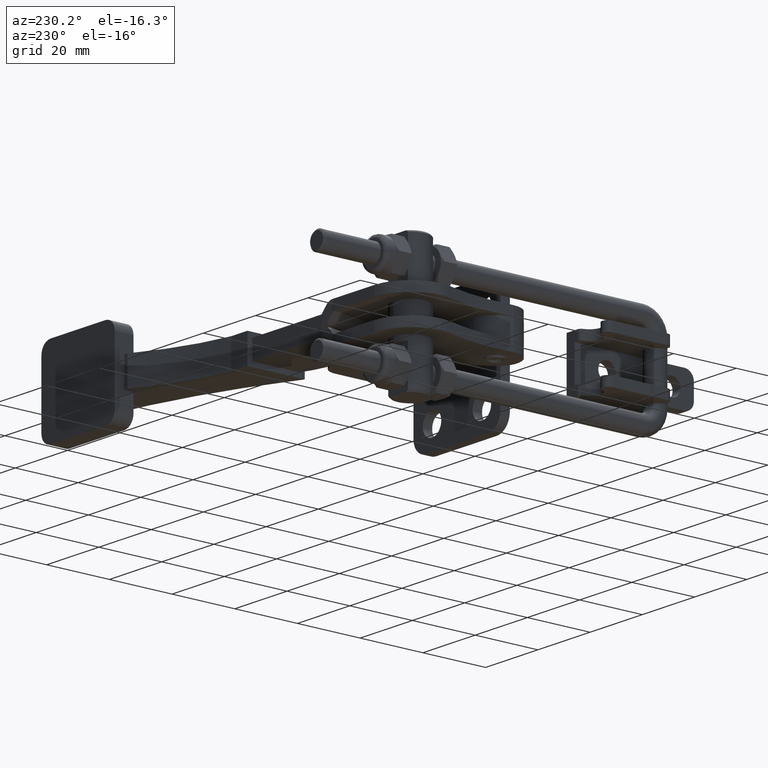
[diagram: clean part render]
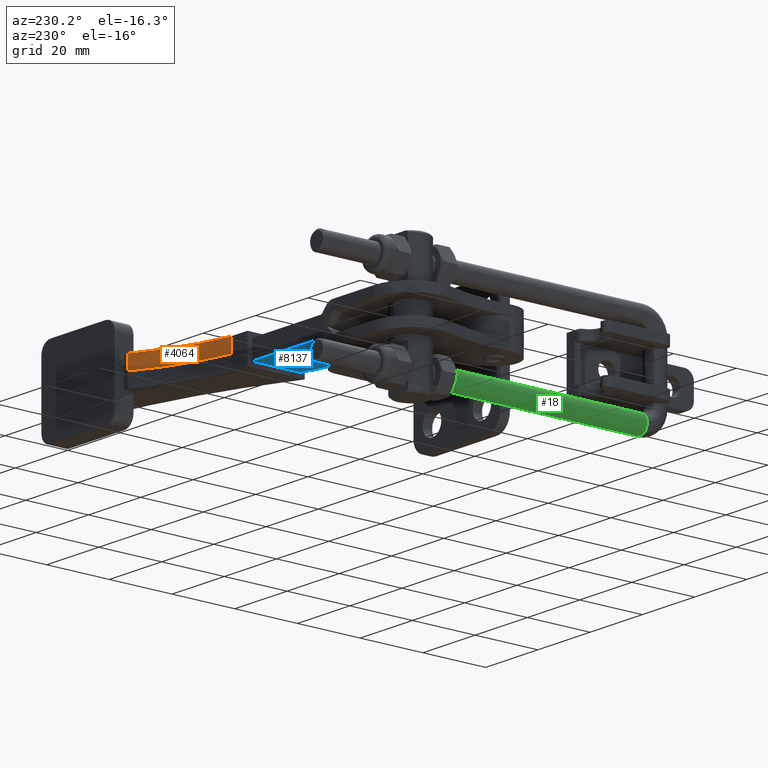
[diagram: same view with three faces highlighted in distinct colors, each labeled with its STEP entity id]
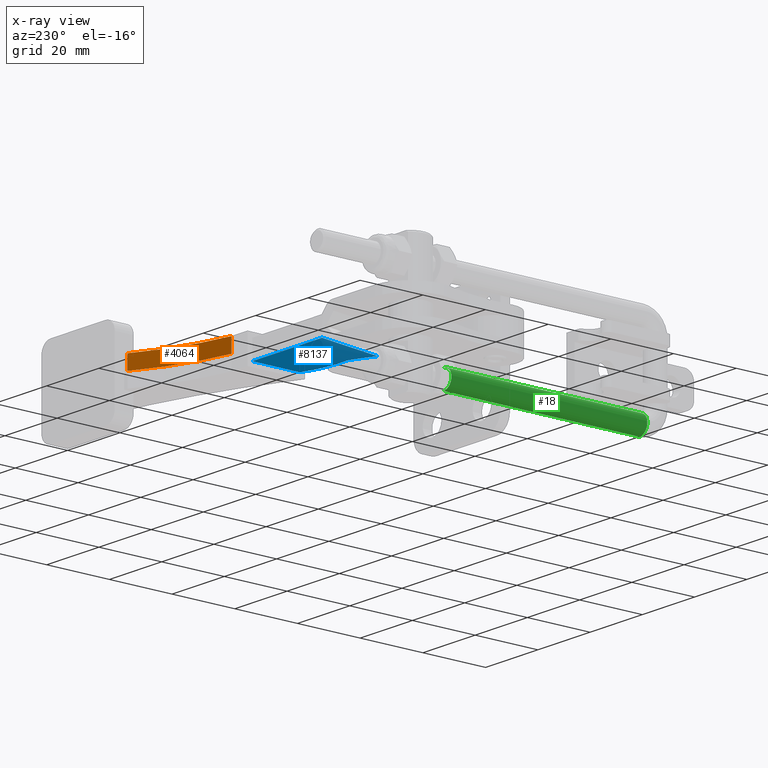
[diagram: x-ray of the same camera — body ghosted, the three highlighted faces saturated]
A machine part, auxiliary view with three faces highlighted in distinct colors.
The next image is the same camera in x-ray (body ghosted, the three faces saturated) — at least one of them is partly hidden behind the body in this view.
Their STEP definitions:

[orange] entity #4064 — the highlighted cylindrical surface (partial cylindrical patch) has radius 74.5 mm, axis along (-0, -0, 1).
#300 = VERTEX_POINT ( 'NONE', #8467 ) ;
#925 = EDGE_CURVE ( 'NONE', #2612, #300, #8361, .T. ) ;
#1310 = ORIENTED_EDGE ( 'NONE', *, *, #4200, .F. ) ;
#1406 = ORIENTED_EDGE ( 'NONE', *, *, #9375, .T. ) ;
#1446 = VERTEX_POINT ( 'NONE', #6721 ) ;
#1561 = ORIENTED_EDGE ( 'NONE', *, *, #5558, .F. ) ;
#1725 = CARTESIAN_POINT ( 'NONE',  ( 0.05683262129303062700, 125.7815870721781600, 0.0006030670134014003100 ) ) ;
#2522 = DIRECTION ( 'NONE',  ( 0.9999982834972985800, 0.001852836327522323800, 3.921506730467770700E-017 ) ) ;
#2612 = VERTEX_POINT ( 'NONE', #2949 ) ;
#2703 = AXIS2_PLACEMENT_3D ( 'NONE', #5304, #10275, #4464 ) ;
#2760 = LINE ( 'NONE', #5652, #6428 ) ;
#2926 = CIRCLE ( 'NONE', #2703, 74.49999999999998600 ) ;
#2949 = CARTESIAN_POINT ( 'NONE',  ( 10.81696560941712600, 52.06273237354707100, 0.0006030670133966298300 ) ) ;
#4052 = AXIS2_PLACEMENT_3D ( 'NONE', #1725, #7572, #2522 ) ;
#4064 = ADVANCED_FACE ( 'NONE', ( #8794 ), #5311, .F. ) ;
#4200 = EDGE_CURVE ( 'NONE', #1446, #300, #2926, .T. ) ;
#4242 = CARTESIAN_POINT ( 'NONE',  ( 0.05683262129303062700, 125.7815870721781600, 0.0006030670134014003100 ) ) ;
#4464 = DIRECTION ( 'NONE',  ( 0.9999982834972985800, 0.001852836327522323800, 3.492731830825787100E-017 ) ) ;
#4766 = ORIENTED_EDGE ( 'NONE', *, *, #925, .T. ) ;
#5069 = DIRECTION ( 'NONE',  ( 0.9999982834972985800, 0.001852836327522323800, 3.921506730467770700E-017 ) ) ;
#5304 = CARTESIAN_POINT ( 'NONE',  ( 0.05683262129303062700, 125.7815870721781600, 4.500603067013401000 ) ) ;
#5311 = CYLINDRICAL_SURFACE ( 'NONE', #4052, 74.49999999999998600 ) ;
#5558 = EDGE_CURVE ( 'NONE', #7573, #1446, #2760, .T. ) ;
#5652 = CARTESIAN_POINT ( 'NONE',  ( 38.61519981494309700, 62.03598079723830900, 0.0006030670134027013600 ) ) ;
#6142 = CIRCLE ( 'NONE', #7017, 74.49999999999998600 ) ;
#6428 = VECTOR ( 'NONE', #9784, 1000.000000000000000 ) ;
#6721 = CARTESIAN_POINT ( 'NONE',  ( 38.61519981494309700, 62.03598079723830900, 4.500603067013402700 ) ) ;
#6738 = CARTESIAN_POINT ( 'NONE',  ( 10.81696560941713900, 52.06273237354706400, 0.0006030670134014003100 ) ) ;
#7017 = AXIS2_PLACEMENT_3D ( 'NONE', #4242, #10064, #5069 ) ;
#7039 = DIRECTION ( 'NONE',  ( -3.921066683671212800E-017, -2.255775528422235900E-018, 1.000000000000000000 ) ) ;
#7572 = DIRECTION ( 'NONE',  ( -3.921066683671212800E-017, -2.255775528422235900E-018, 1.000000000000000000 ) ) ;
#7573 = VERTEX_POINT ( 'NONE', #10066 ) ;
#8361 = LINE ( 'NONE', #6738, #10083 ) ;
#8467 = CARTESIAN_POINT ( 'NONE',  ( 10.81696560941713900, 52.06273237354706400, 4.500603067013401000 ) ) ;
#8794 = FACE_OUTER_BOUND ( 'NONE', #9499, .T. ) ;
#9375 = EDGE_CURVE ( 'NONE', #7573, #2612, #6142, .T. ) ;
#9499 = EDGE_LOOP ( 'NONE', ( #4766, #1310, #1561, #1406 ) ) ;
#9784 = DIRECTION ( 'NONE',  ( -3.921066683671212800E-017, -2.255775528422235900E-018, 1.000000000000000000 ) ) ;
#10064 = DIRECTION ( 'NONE',  ( 3.921066683671212800E-017, 2.255775528422235900E-018, -1.000000000000000000 ) ) ;
#10066 = CARTESIAN_POINT ( 'NONE',  ( 38.61519981494309000, 62.03598079723832400, 0.0006030670134048697600 ) ) ;
#10083 = VECTOR ( 'NONE', #7039, 1000.000000000000000 ) ;
#10275 = DIRECTION ( 'NONE',  ( 3.921066683671212800E-017, 2.255775528422235900E-018, -1.000000000000000000 ) ) ;

[blue] entity #8137 — the highlighted planar face has unit normal (0, 0, -1).
#142 = DIRECTION ( 'NONE',  ( 0.9999982834972985800, 0.001852836327522671800, 1.824018771337445000E-016 ) ) ;
#279 = EDGE_CURVE ( 'NONE', #2916, #2660, #988, .T. ) ;
#403 = DIRECTION ( 'NONE',  ( 0.9999982834972984700, 0.001852836327522849000, 1.879283765641541900E-016 ) ) ;
#649 = ORIENTED_EDGE ( 'NONE', *, *, #279, .F. ) ;
#766 = ORIENTED_EDGE ( 'NONE', *, *, #1419, .F. ) ;
#769 = VERTEX_POINT ( 'NONE', #8094 ) ;
#824 = FACE_OUTER_BOUND ( 'NONE', #3402, .T. ) ;
#988 = LINE ( 'NONE', #1680, #9306 ) ;
#1419 = EDGE_CURVE ( 'NONE', #769, #2691, #5138, .T. ) ;
#1680 = CARTESIAN_POINT ( 'NONE',  ( -20.96703082430036200, 44.62815182140756300, -2.999396932986583900 ) ) ;
#1900 = CARTESIAN_POINT ( 'NONE',  ( 4.640505989338517000, 50.55128581038540900, -2.999396932986571100 ) ) ;
#2024 = CARTESIAN_POINT ( 'NONE',  ( -10.80083425557042900, 33.02264544627546900, -2.999396932986579500 ) ) ;
#2577 = DIRECTION ( 'NONE',  ( 0.1754725671797751900, -0.9844843209352494000, -7.240332931474148400E-016 ) ) ;
#2660 = VERTEX_POINT ( 'NONE', #7299 ) ;
#2691 = VERTEX_POINT ( 'NONE', #1900 ) ;
#2894 = VECTOR ( 'NONE', #3652, 1000.000000000000100 ) ;
#2916 = VERTEX_POINT ( 'NONE', #4504 ) ;
#3376 = EDGE_CURVE ( 'NONE', #2660, #8920, #6872, .T. ) ;
#3402 = EDGE_LOOP ( 'NONE', ( #4787, #5181, #4086, #649, #6329, #766 ) ) ;
#3593 = VECTOR ( 'NONE', #7013, 999.9999999999998900 ) ;
#3617 = AXIS2_PLACEMENT_3D ( 'NONE', #10483, #9562, #7557 ) ;
#3652 = DIRECTION ( 'NONE',  ( -0.001852836327522545200, 0.9999982834972985800, 7.742440402880562000E-016 ) ) ;
#3653 = DIRECTION ( 'NONE',  ( -0.9999982834972985800, -0.001852836327522803600, -1.268907259024866700E-016 ) ) ;
#4086 = ORIENTED_EDGE ( 'NONE', *, *, #3376, .F. ) ;
#4213 = VECTOR ( 'NONE', #3653, 999.9999999999998900 ) ;
#4280 = AXIS2_PLACEMENT_3D ( 'NONE', #10357, #5405, #403 ) ;
#4476 = CARTESIAN_POINT ( 'NONE',  ( 4.624960692550604200, 58.94127140892775400, -2.999396932986576400 ) ) ;
#4504 = CARTESIAN_POINT ( 'NONE',  ( -22.01395614284478300, 50.50189936988436300, -2.999396926162191300 ) ) ;
#4787 = ORIENTED_EDGE ( 'NONE', *, *, #4937, .F. ) ;
#4797 = EDGE_CURVE ( 'NONE', #8920, #10377, #8010, .T. ) ;
#4937 = EDGE_CURVE ( 'NONE', #10377, #769, #8909, .T. ) ;
#5138 = LINE ( 'NONE', #4476, #2894 ) ;
#5141 = DIRECTION ( 'NONE',  ( 1.809670165562159600E-016, 7.745806721202310500E-016, -1.000000000000000000 ) ) ;
#5181 = ORIENTED_EDGE ( 'NONE', *, *, #4797, .F. ) ;
#5405 = DIRECTION ( 'NONE',  ( -1.809670165562161600E-016, -7.745806721202312500E-016, 1.000000000000000000 ) ) ;
#5645 = AXIS2_PLACEMENT_3D ( 'NONE', #8426, #5141, #142 ) ;
#5832 = CARTESIAN_POINT ( 'NONE',  ( -6.980840812610758800, 33.02972328104660700, -2.999396932986578600 ) ) ;
#6329 = ORIENTED_EDGE ( 'NONE', *, *, #8287, .F. ) ;
#6414 = LINE ( 'NONE', #7788, #4213 ) ;
#6872 = CIRCLE ( 'NONE', #3617, 46.56999999999997200 ) ;
#7013 = DIRECTION ( 'NONE',  ( 0.9999982834972985800, 0.001852836327524489800, 1.268907259024869000E-016 ) ) ;
#7299 = CARTESIAN_POINT ( 'NONE',  ( -18.30231359614691700, 29.67782441122381700, -2.999396926162206400 ) ) ;
#7557 = DIRECTION ( 'NONE',  ( 0.9999982834972985800, 0.001852836327522680500, 1.862490311334344100E-016 ) ) ;
#7620 = PLANE ( 'NONE',  #5645 ) ;
#7788 = CARTESIAN_POINT ( 'NONE',  ( 10.92670375759657200, 50.56293312596507400, -2.999396932986558200 ) ) ;
#8010 = LINE ( 'NONE', #2024, #3593 ) ;
#8094 = CARTESIAN_POINT ( 'NONE',  ( 4.668565289365503200, 35.40734058094524500, -2.999396932986566600 ) ) ;
#8137 = ADVANCED_FACE ( 'NONE', ( #824 ), #7620, .T. ) ;
#8287 = EDGE_CURVE ( 'NONE', #2691, #2916, #6414, .T. ) ;
#8426 = CARTESIAN_POINT ( 'NONE',  ( 59.91107435547793600, 59.04370770456214500, -2.999396932986566600 ) ) ;
#8909 = CIRCLE ( 'NONE', #4280, 29.99999999999998600 ) ;
#8920 = VERTEX_POINT ( 'NONE', #10309 ) ;
#9306 = VECTOR ( 'NONE', #2577, 1000.000000000000000 ) ;
#9562 = DIRECTION ( 'NONE',  ( 1.809670165562161600E-016, 7.745806721202312500E-016, -1.000000000000000000 ) ) ;
#10309 = CARTESIAN_POINT ( 'NONE',  ( -10.80083425557042900, 33.02264544627546900, -2.999396932986579500 ) ) ;
#10357 = CARTESIAN_POINT ( 'NONE',  ( -7.036425902436430000, 63.02967178596555400, -2.999396932986547100 ) ) ;
#10377 = VERTEX_POINT ( 'NONE', #5832 ) ;
#10483 = CARTESIAN_POINT ( 'NONE',  ( 4.339675622072561200, -11.01744833933076100, -2.999396932986609700 ) ) ;

[green] entity #18 — the highlighted cylindrical surface (edge-blend (fillet) strip) has radius 3 mm, axis along (-0, 1, -0).
#18 = ADVANCED_FACE ( 'NONE', ( #6333 ), #3858, .T. ) ;
#1103 = DIRECTION ( 'NONE',  ( 0.0000000000000000000, 0.0000000000000000000, -1.000000000000000000 ) ) ;
#1308 = CARTESIAN_POINT ( 'NONE',  ( -42.13817590730900500, -33.99771005529757400, -10.99999999999999300 ) ) ;
#1542 = ORIENTED_EDGE ( 'NONE', *, *, #5898, .F. ) ;
#2088 = CARTESIAN_POINT ( 'NONE',  ( -42.13817590730901200, 28.50228994470244000, -13.99999999999999600 ) ) ;
#2921 = DIRECTION ( 'NONE',  ( -1.000000000000000000, -1.156482317317870300E-015, 0.0000000000000000000 ) ) ;
#3247 = VERTEX_POINT ( 'NONE', #8450 ) ;
#3858 = CYLINDRICAL_SURFACE ( 'NONE', #7693, 3.000000000000000900 ) ;
#3930 = EDGE_CURVE ( 'NONE', #7235, #3247, #8669, .T. ) ;
#4035 = AXIS2_PLACEMENT_3D ( 'NONE', #9390, #4427, #10237 ) ;
#4177 = CARTESIAN_POINT ( 'NONE',  ( -42.13817590730899800, -33.99771005529757400, -16.99999999999999300 ) ) ;
#4345 = LINE ( 'NONE', #5197, #10439 ) ;
#4356 = DIRECTION ( 'NONE',  ( -2.220446049250312600E-016, 1.000000000000000000, -4.818676322157196700E-017 ) ) ;
#4427 = DIRECTION ( 'NONE',  ( -2.220446049250312600E-016, 1.000000000000000000, -4.818676322157196700E-017 ) ) ;
#4843 = CARTESIAN_POINT ( 'NONE',  ( -42.13817590730899800, -33.99771005529757400, -10.99999999999999300 ) ) ;
#5197 = CARTESIAN_POINT ( 'NONE',  ( -42.13817590730899800, -33.99771005529757400, -16.99999999999999300 ) ) ;
#5712 = VERTEX_POINT ( 'NONE', #4177 ) ;
#5850 = ORIENTED_EDGE ( 'NONE', *, *, #3930, .T. ) ;
#5898 = EDGE_CURVE ( 'NONE', #5712, #6804, #4345, .T. ) ;
#6272 = CIRCLE ( 'NONE', #4035, 3.000000000000000900 ) ;
#6333 = FACE_OUTER_BOUND ( 'NONE', #6851, .T. ) ;
#6804 = VERTEX_POINT ( 'NONE', #10697 ) ;
#6851 = EDGE_LOOP ( 'NONE', ( #8406, #5850, #9065, #1542 ) ) ;
#7235 = VERTEX_POINT ( 'NONE', #1308 ) ;
#7693 = AXIS2_PLACEMENT_3D ( 'NONE', #8764, #7949, #1103 ) ;
#7931 = DIRECTION ( 'NONE',  ( 1.165734175856414400E-015, -1.000000000000000000, 4.857225732735059900E-016 ) ) ;
#7949 = DIRECTION ( 'NONE',  ( -2.220446049250312600E-016, 1.000000000000000000, -4.818676322157196700E-017 ) ) ;
#8406 = ORIENTED_EDGE ( 'NONE', *, *, #9476, .T. ) ;
#8410 = VECTOR ( 'NONE', #8663, 1000.000000000000000 ) ;
#8450 = CARTESIAN_POINT ( 'NONE',  ( -42.13817590730900500, 28.50228994470244000, -10.99999999999999600 ) ) ;
#8663 = DIRECTION ( 'NONE',  ( -2.220446049250312600E-016, 1.000000000000000000, -4.818676322157196700E-017 ) ) ;
#8669 = LINE ( 'NONE', #4843, #8410 ) ;
#8764 = CARTESIAN_POINT ( 'NONE',  ( -42.13817590730899800, -33.99771005529757400, -13.99999999999999300 ) ) ;
#9065 = ORIENTED_EDGE ( 'NONE', *, *, #10155, .T. ) ;
#9390 = CARTESIAN_POINT ( 'NONE',  ( -42.13817590730899800, -33.99771005529757400, -13.99999999999999300 ) ) ;
#9476 = EDGE_CURVE ( 'NONE', #5712, #7235, #6272, .T. ) ;
#9755 = AXIS2_PLACEMENT_3D ( 'NONE', #2088, #7931, #2921 ) ;
#10155 = EDGE_CURVE ( 'NONE', #3247, #6804, #10281, .T. ) ;
#10237 = DIRECTION ( 'NONE',  ( 0.0000000000000000000, 0.0000000000000000000, -1.000000000000000000 ) ) ;
#10281 = CIRCLE ( 'NONE', #9755, 3.000000000000002700 ) ;
#10439 = VECTOR ( 'NONE', #4356, 1000.000000000000000 ) ;
#10697 = CARTESIAN_POINT ( 'NONE',  ( -42.13817590730900500, 28.50228994470244000, -16.99999999999999600 ) ) ;